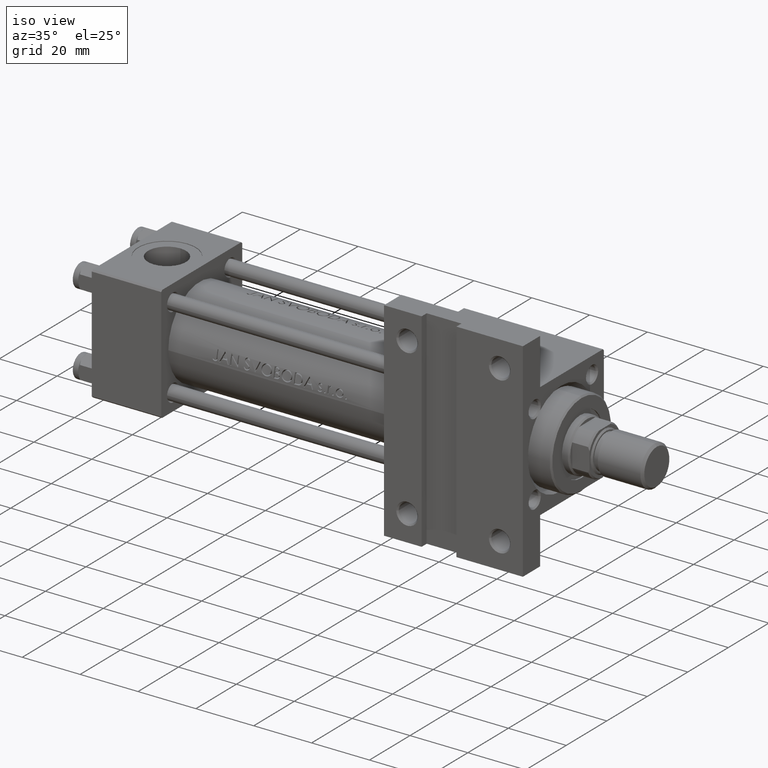
[diagram: clean part render]
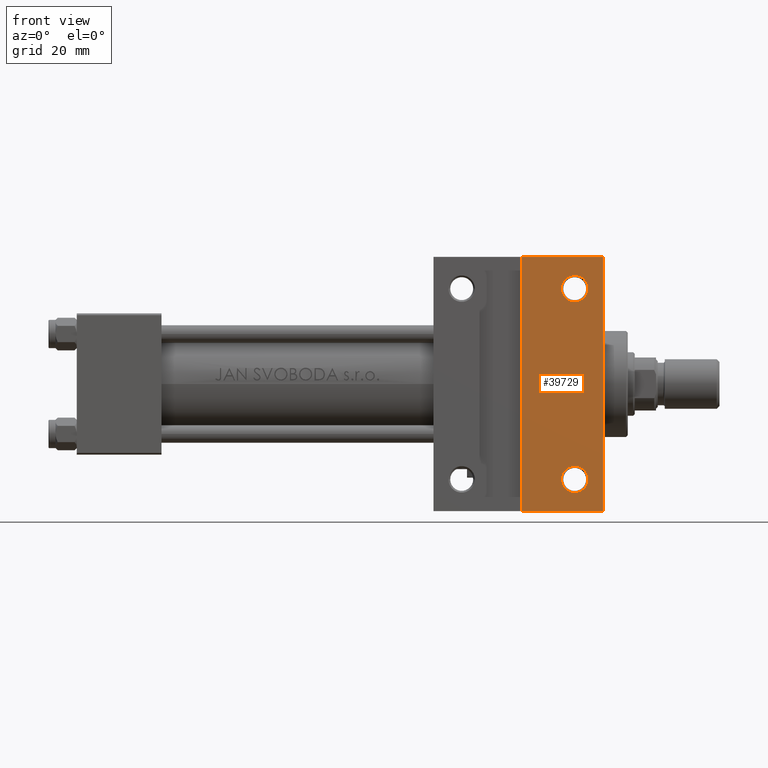
[diagram: tour spotlight — one face highlighted and labeled with its STEP entity id]
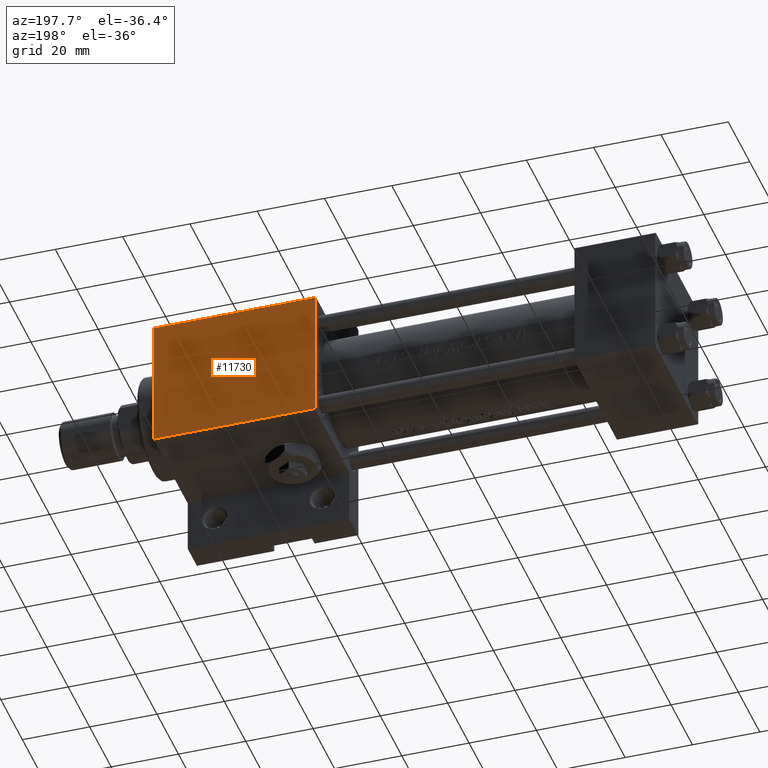
[diagram: tour spotlight — one face highlighted and labeled with its STEP entity id]
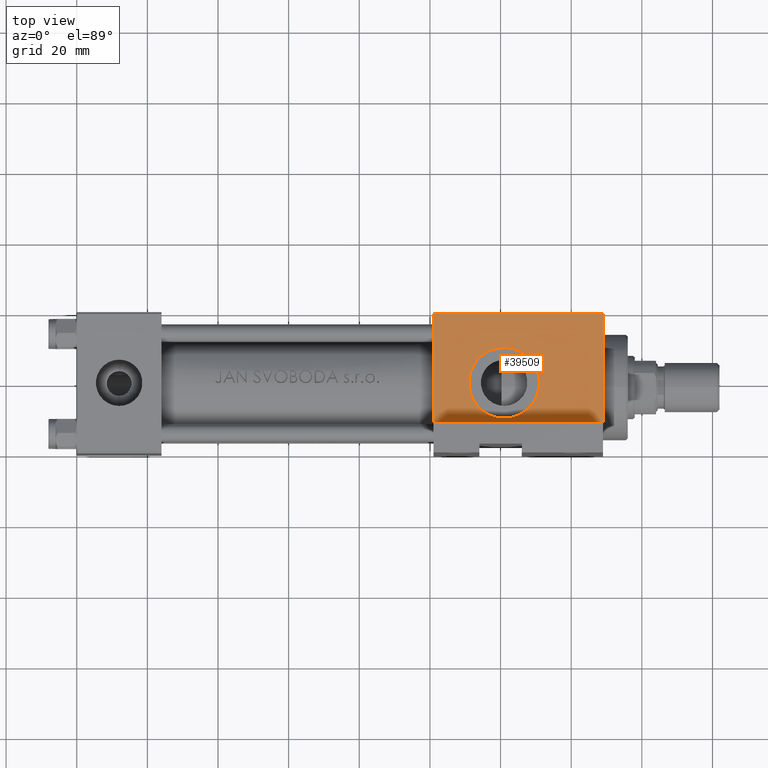
[diagram: tour spotlight — one face highlighted and labeled with its STEP entity id]
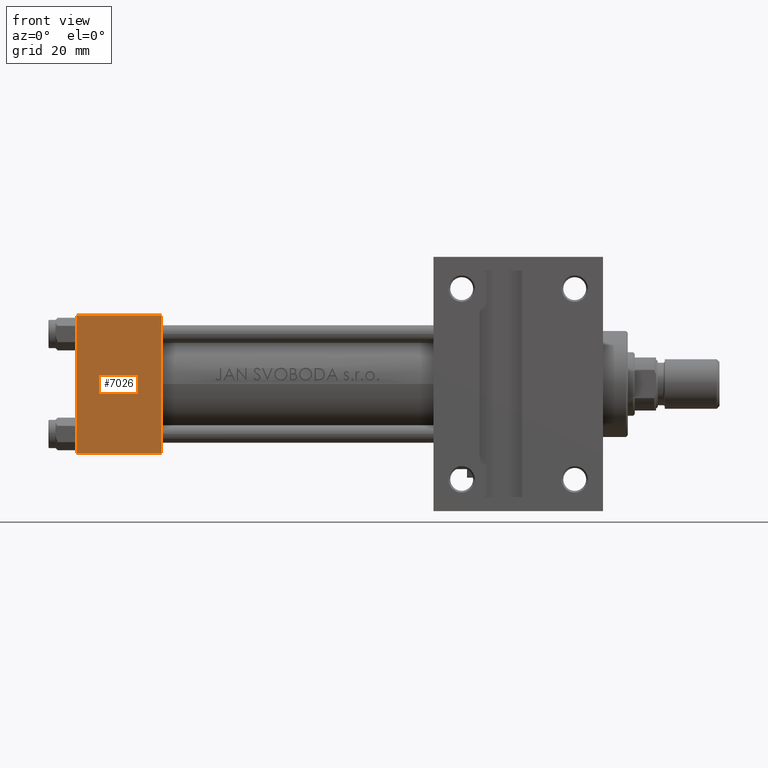
[diagram: tour spotlight — one face highlighted and labeled with its STEP entity id]
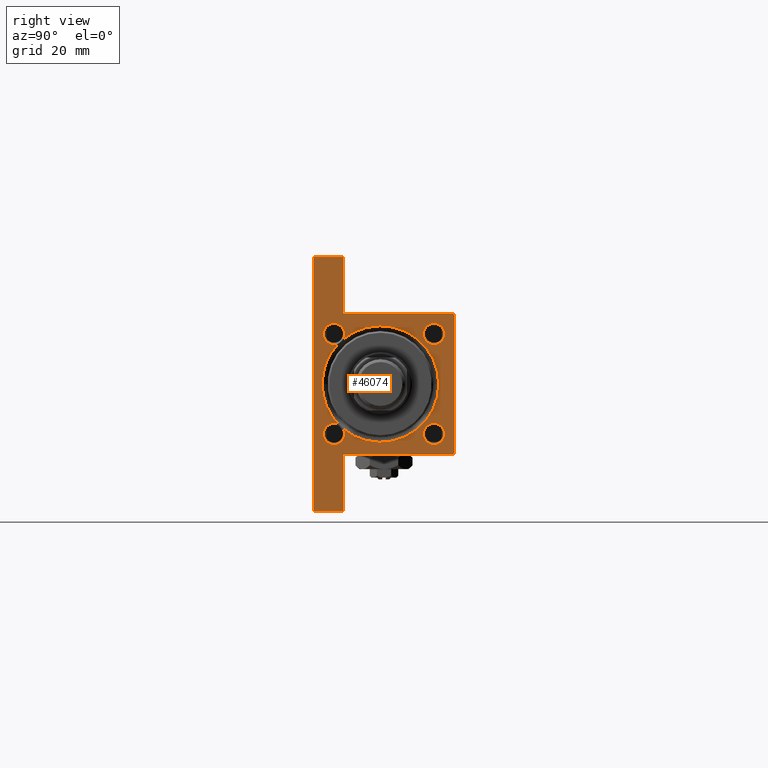
[diagram: tour spotlight — one face highlighted and labeled with its STEP entity id]
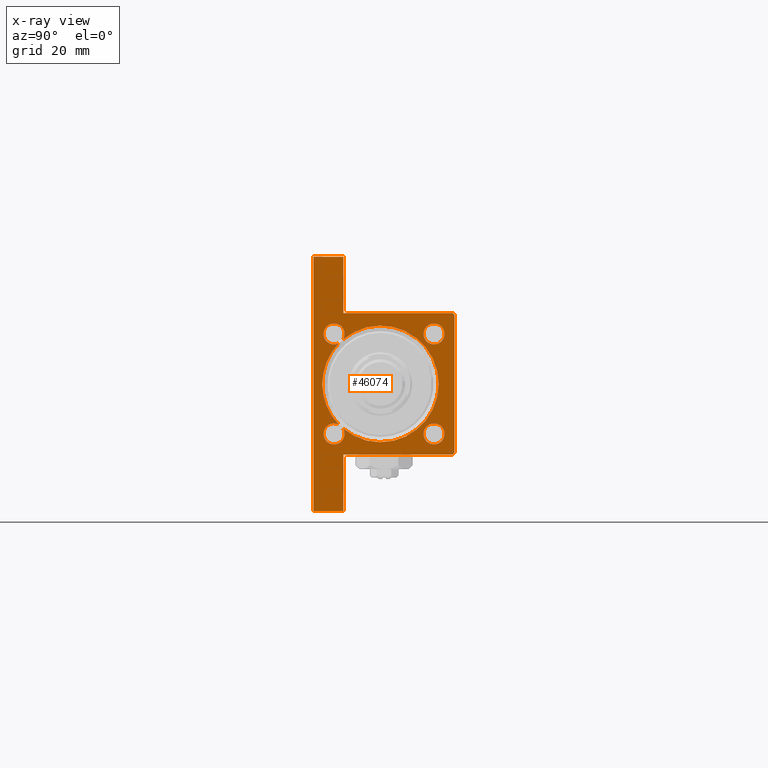
[diagram: x-ray of the same camera — body ghosted, this tour face saturated]
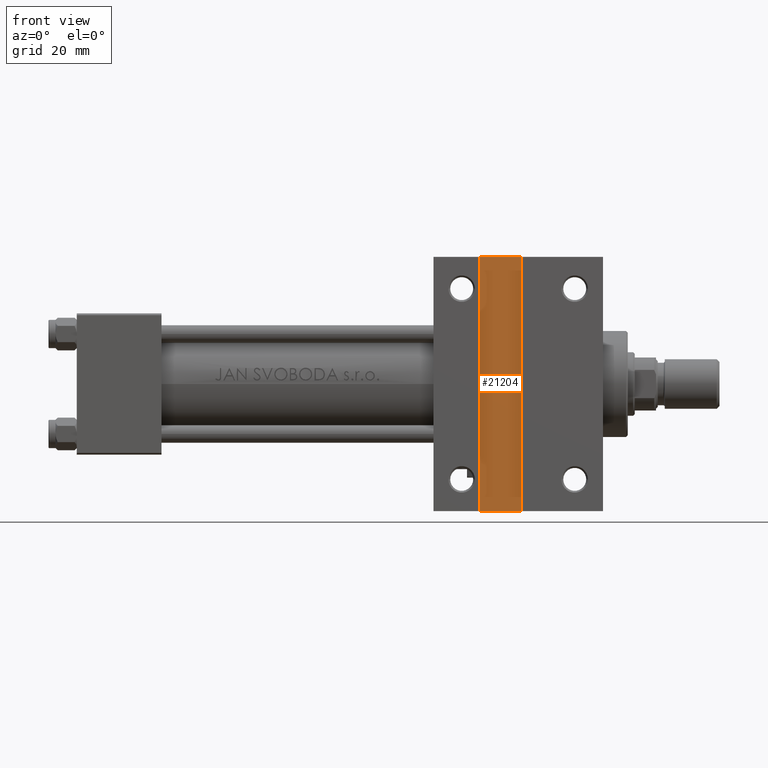
[diagram: tour spotlight — one face highlighted and labeled with its STEP entity id]
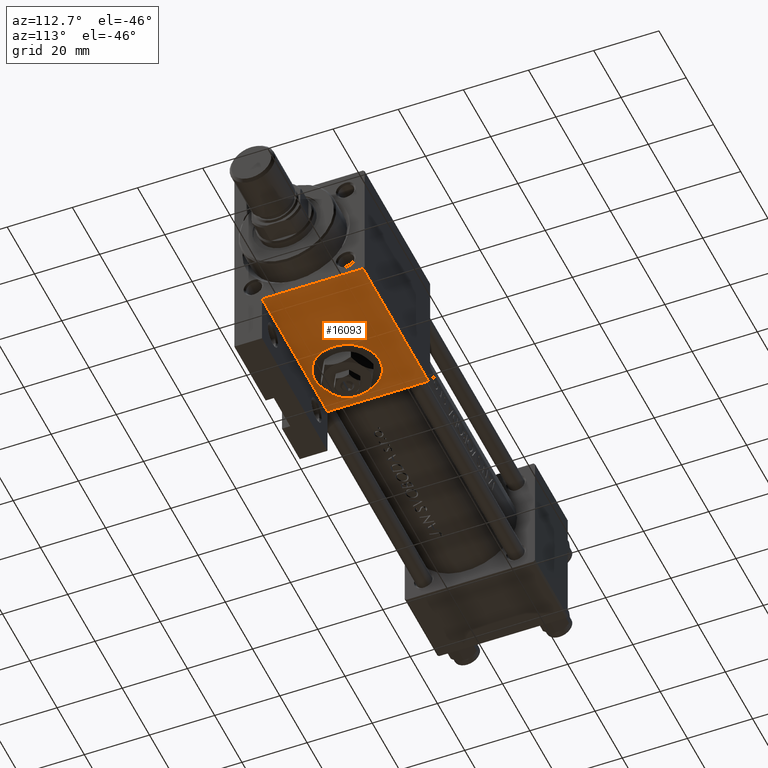
[diagram: tour spotlight — one face highlighted and labeled with its STEP entity id]
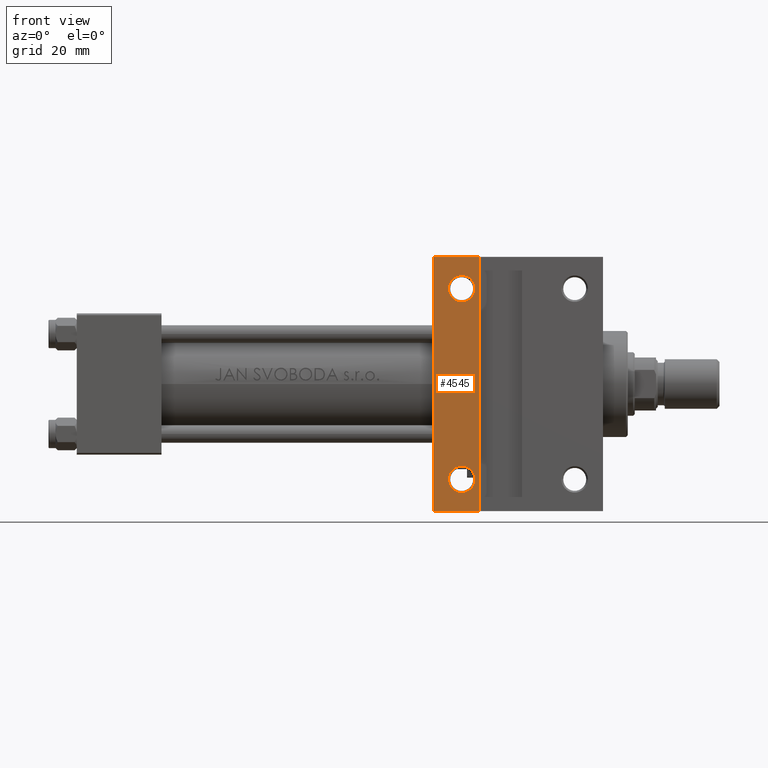
[diagram: tour spotlight — one face highlighted and labeled with its STEP entity id]
A machine part: a face-by-face anatomy tour. The part has 1161 B-rep faces; the first image is the clean iso view, then the 8 largest visible faces are spotlighted one at a time (largest first), each with its STEP entity span.

Face 1 — front view, entity #39729. In plain terms, the highlighted planar face has unit normal (0, -1, 0).
Definition (entity closure, byte-faithful):
#399 = VERTEX_POINT ( 'NONE', #49270 ) ;
#2049 = FACE_BOUND ( 'NONE', #5505, .T. ) ;
#3095 = VERTEX_POINT ( 'NONE', #12954 ) ;
#3488 = VERTEX_POINT ( 'NONE', #22175 ) ;
#3677 = ORIENTED_EDGE ( 'NONE', *, *, #7713, .T. ) ;
#4336 = LINE ( 'NONE', #19704, #32330 ) ;
#4626 = VERTEX_POINT ( 'NONE', #32678 ) ;
#5505 = EDGE_LOOP ( 'NONE', ( #40522, #35422 ) ) ;
#5537 = DIRECTION ( 'NONE',  ( -1.000000000000000000, 0.000000000000000000, 0.000000000000000000 ) ) ;
#5550 = CARTESIAN_POINT ( 'NONE',  ( 141.0000000000000000, 27.00000000000000000, -20.00000000000000000 ) ) ;
#7344 = VECTOR ( 'NONE', #27561, 1000.000000000000000 ) ;
#7381 = EDGE_CURVE ( 'NONE', #3488, #44275, #8176, .T. ) ;
#7713 = EDGE_CURVE ( 'NONE', #44275, #4626, #4336, .T. ) ;
#8176 = LINE ( 'NONE', #46913, #7344 ) ;
#8385 = ORIENTED_EDGE ( 'NONE', *, *, #18430, .F. ) ;
#8565 = DIRECTION ( 'NONE',  ( -0.000000000000000000, -0.000000000000000000, 1.000000000000000000 ) ) ;
#8890 = ORIENTED_EDGE ( 'NONE', *, *, #7381, .T. ) ;
#9123 = LINE ( 'NONE', #36773, #14481 ) ;
#10054 = DIRECTION ( 'NONE',  ( -0.000000000000000000, -0.000000000000000000, 1.000000000000000000 ) ) ;
#10292 = DIRECTION ( 'NONE',  ( -1.000000000000000000, 0.000000000000000000, 0.000000000000000000 ) ) ;
#11481 = EDGE_CURVE ( 'NONE', #3095, #45516, #38846, .T. ) ;
#11966 = AXIS2_PLACEMENT_3D ( 'NONE', #40009, #13571, #5537 ) ;
#12898 = EDGE_LOOP ( 'NONE', ( #8385, #8890, #3677, #29888 ) ) ;
#12954 = CARTESIAN_POINT ( 'NONE',  ( 137.2500499999999874, -27.00000000000000000, -20.00000000000000000 ) ) ;
#13427 = VECTOR ( 'NONE', #22067, 1000.000000000000000 ) ;
#13571 = DIRECTION ( 'NONE',  ( -0.000000000000000000, -0.000000000000000000, 1.000000000000000000 ) ) ;
#14062 = CARTESIAN_POINT ( 'NONE',  ( 141.0000000000000000, 27.00000000000000000, -20.00000000000000000 ) ) ;
#14110 = FACE_OUTER_BOUND ( 'NONE', #12898, .T. ) ;
#14204 = AXIS2_PLACEMENT_3D ( 'NONE', #22163, #21663, #49055 ) ;
#14262 = LINE ( 'NONE', #29624, #13427 ) ;
#14481 = VECTOR ( 'NONE', #36537, 1000.000000000000000 ) ;
#15353 = CARTESIAN_POINT ( 'NONE',  ( 141.0000000000000000, -27.00000000000000000, -20.00000000000000000 ) ) ;
#16464 = CARTESIAN_POINT ( 'NONE',  ( 137.2500499999999874, 27.00000000000000000, -20.00000000000000000 ) ) ;
#17477 = VERTEX_POINT ( 'NONE', #29174 ) ;
#17887 = FACE_BOUND ( 'NONE', #32587, .T. ) ;
#18430 = EDGE_CURVE ( 'NONE', #3488, #399, #9123, .T. ) ;
#19319 = AXIS2_PLACEMENT_3D ( 'NONE', #14062, #47789, #40254 ) ;
#19413 = EDGE_CURVE ( 'NONE', #38568, #17477, #33778, .T. ) ;
#19436 = EDGE_CURVE ( 'NONE', #45516, #3095, #33002, .T. ) ;
#19704 = CARTESIAN_POINT ( 'NONE',  ( 149.0000000000000284, 19.99999999999999645, -20.00000000000000000 ) ) ;
#21663 = DIRECTION ( 'NONE',  ( 0.000000000000000000, 0.000000000000000000, -1.000000000000000000 ) ) ;
#22067 = DIRECTION ( 'NONE',  ( -1.000000000000000000, 1.445602896647340149E-16, -0.000000000000000000 ) ) ;
#22163 = CARTESIAN_POINT ( 'NONE',  ( 149.0000000000000284, 19.99999999999999645, -20.00000000000000000 ) ) ;
#22175 = CARTESIAN_POINT ( 'NONE',  ( 125.9999999999999716, 35.99999999999998579, -20.00000000000000000 ) ) ;
#26357 = ORIENTED_EDGE ( 'NONE', *, *, #45147, .T. ) ;
#27561 = DIRECTION ( 'NONE',  ( 1.000000000000000000, 1.445602896647340396E-16, 0.000000000000000000 ) ) ;
#29174 = CARTESIAN_POINT ( 'NONE',  ( 144.7499500000000410, 27.00000000000000000, -20.00000000000000000 ) ) ;
#29227 = PLANE ( 'NONE',  #14204 ) ;
#29624 = CARTESIAN_POINT ( 'NONE',  ( 100.9999999999999858, -36.00000000000000000, -20.00000000000000000 ) ) ;
#29888 = ORIENTED_EDGE ( 'NONE', *, *, #40715, .T. ) ;
#30970 = DIRECTION ( 'NONE',  ( -1.000000000000000000, 0.000000000000000000, 0.000000000000000000 ) ) ;
#32026 = ORIENTED_EDGE ( 'NONE', *, *, #19413, .T. ) ;
#32330 = VECTOR ( 'NONE', #35051, 1000.000000000000000 ) ;
#32587 = EDGE_LOOP ( 'NONE', ( #32026, #26357 ) ) ;
#32678 = CARTESIAN_POINT ( 'NONE',  ( 148.9999999999999716, -36.00000000000000711, -20.00000000000000000 ) ) ;
#33002 = CIRCLE ( 'NONE', #11966, 3.749950000000029426 ) ;
#33778 = CIRCLE ( 'NONE', #19319, 3.749950000000029426 ) ;
#35051 = DIRECTION ( 'NONE',  ( 0.000000000000000000, -1.000000000000000000, 0.000000000000000000 ) ) ;
#35143 = CARTESIAN_POINT ( 'NONE',  ( 148.9999999999999716, 35.99999999999999289, -20.00000000000000000 ) ) ;
#35422 = ORIENTED_EDGE ( 'NONE', *, *, #19436, .T. ) ;
#36107 = CIRCLE ( 'NONE', #41688, 3.749950000000029426 ) ;
#36537 = DIRECTION ( 'NONE',  ( -0.000000000000000000, -1.000000000000000000, -0.000000000000000000 ) ) ;
#36773 = CARTESIAN_POINT ( 'NONE',  ( 125.9999999999999716, -35.99999999999997868, -20.00000000000000000 ) ) ;
#38568 = VERTEX_POINT ( 'NONE', #16464 ) ;
#38846 = CIRCLE ( 'NONE', #48457, 3.749950000000029426 ) ;
#38848 = CARTESIAN_POINT ( 'NONE',  ( 144.7499500000000410, -27.00000000000000000, -20.00000000000000000 ) ) ;
#39729 = ADVANCED_FACE ( 'NONE', ( #14110, #2049, #17887 ), #29227, .T. ) ;
#40009 = CARTESIAN_POINT ( 'NONE',  ( 141.0000000000000000, -27.00000000000000000, -20.00000000000000000 ) ) ;
#40254 = DIRECTION ( 'NONE',  ( -1.000000000000000000, 0.000000000000000000, 0.000000000000000000 ) ) ;
#40522 = ORIENTED_EDGE ( 'NONE', *, *, #11481, .T. ) ;
#40715 = EDGE_CURVE ( 'NONE', #4626, #399, #14262, .T. ) ;
#41688 = AXIS2_PLACEMENT_3D ( 'NONE', #5550, #10054, #10292 ) ;
#44275 = VERTEX_POINT ( 'NONE', #35143 ) ;
#45147 = EDGE_CURVE ( 'NONE', #17477, #38568, #36107, .T. ) ;
#45516 = VERTEX_POINT ( 'NONE', #38848 ) ;
#46913 = CARTESIAN_POINT ( 'NONE',  ( 101.0000000000000000, 35.99999999999998579, -20.00000000000000000 ) ) ;
#47789 = DIRECTION ( 'NONE',  ( -0.000000000000000000, -0.000000000000000000, 1.000000000000000000 ) ) ;
#48457 = AXIS2_PLACEMENT_3D ( 'NONE', #15353, #8565, #30970 ) ;
#49055 = DIRECTION ( 'NONE',  ( -1.000000000000000000, 0.000000000000000000, -0.000000000000000000 ) ) ;
#49270 = CARTESIAN_POINT ( 'NONE',  ( 125.9999999999999716, -35.99999999999997868, -20.00000000000000000 ) ) ;

Face 2 — auxiliary view, entity #11730. In plain terms, the highlighted planar face has unit normal (0, -1, -0).
Definition (entity closure, byte-faithful):
#2721 = CARTESIAN_POINT ( 'NONE',  ( 149.0000000000000284, 19.99999999999999645, 20.00000000000000000 ) ) ;
#5028 = DIRECTION ( 'NONE',  ( 0.000000000000000000, 8.673617379884034239E-17, -1.000000000000000000 ) ) ;
#6262 = LINE ( 'NONE', #2721, #15533 ) ;
#7088 = DIRECTION ( 'NONE',  ( -1.000000000000000000, 0.000000000000000000, 0.000000000000000000 ) ) ;
#9792 = CARTESIAN_POINT ( 'NONE',  ( 149.0000000000000284, 19.99999999999999645, 20.00000000000000000 ) ) ;
#11020 = CARTESIAN_POINT ( 'NONE',  ( 149.0000000000000284, -19.50000000000000355, 19.99999999999999645 ) ) ;
#11730 = ADVANCED_FACE ( 'NONE', ( #32206 ), #28932, .F. ) ;
#11771 = EDGE_CURVE ( 'NONE', #12026, #44639, #6262, .T. ) ;
#12026 = VERTEX_POINT ( 'NONE', #16550 ) ;
#14771 = EDGE_CURVE ( 'NONE', #12026, #46478, #49323, .T. ) ;
#15290 = DIRECTION ( 'NONE',  ( 1.000000000000000000, 0.000000000000000000, 0.000000000000000000 ) ) ;
#15533 = VECTOR ( 'NONE', #17833, 1000.000000000000000 ) ;
#16550 = CARTESIAN_POINT ( 'NONE',  ( 149.0000000000000284, 19.50000000000001066, 20.00000000000000000 ) ) ;
#17833 = DIRECTION ( 'NONE',  ( 0.000000000000000000, -1.000000000000000000, -8.673617379884035472E-17 ) ) ;
#17944 = ORIENTED_EDGE ( 'NONE', *, *, #23648, .T. ) ;
#23502 = CARTESIAN_POINT ( 'NONE',  ( 149.0000000000000284, -19.50000000000000355, 19.99999999999999645 ) ) ;
#23648 = EDGE_CURVE ( 'NONE', #46478, #41498, #43185, .T. ) ;
#25075 = CARTESIAN_POINT ( 'NONE',  ( 101.0000000000000000, 19.99999999999999645, 20.00000000000000000 ) ) ;
#25777 = ORIENTED_EDGE ( 'NONE', *, *, #14771, .T. ) ;
#25814 = VECTOR ( 'NONE', #39667, 1000.000000000000000 ) ;
#26142 = LINE ( 'NONE', #11020, #37481 ) ;
#28474 = ORIENTED_EDGE ( 'NONE', *, *, #11771, .F. ) ;
#28932 = PLANE ( 'NONE',  #37220 ) ;
#32206 = FACE_OUTER_BOUND ( 'NONE', #48858, .T. ) ;
#34826 = VECTOR ( 'NONE', #7088, 1000.000000000000000 ) ;
#36725 = DIRECTION ( 'NONE',  ( 0.000000000000000000, 1.000000000000000000, 8.673617379884034239E-17 ) ) ;
#37220 = AXIS2_PLACEMENT_3D ( 'NONE', #9792, #5028, #36725 ) ;
#37481 = VECTOR ( 'NONE', #15290, 1000.000000000000000 ) ;
#38474 = CARTESIAN_POINT ( 'NONE',  ( 101.0000000000000000, 19.50000000000001066, 20.00000000000000000 ) ) ;
#39331 = ORIENTED_EDGE ( 'NONE', *, *, #40234, .T. ) ;
#39667 = DIRECTION ( 'NONE',  ( 0.000000000000000000, -1.000000000000000000, -8.673617379884035472E-17 ) ) ;
#40234 = EDGE_CURVE ( 'NONE', #41498, #44639, #26142, .T. ) ;
#41199 = CARTESIAN_POINT ( 'NONE',  ( 101.0000000000000000, -19.50000000000000355, 19.99999999999999645 ) ) ;
#41498 = VERTEX_POINT ( 'NONE', #41199 ) ;
#43185 = LINE ( 'NONE', #25075, #25814 ) ;
#44639 = VERTEX_POINT ( 'NONE', #23502 ) ;
#45065 = CARTESIAN_POINT ( 'NONE',  ( 101.0000000000000000, 19.50000000000001066, 20.00000000000000000 ) ) ;
#46478 = VERTEX_POINT ( 'NONE', #38474 ) ;
#48858 = EDGE_LOOP ( 'NONE', ( #28474, #25777, #17944, #39331 ) ) ;
#49323 = LINE ( 'NONE', #45065, #34826 ) ;

Face 3 — top view, entity #39509. In plain terms, the highlighted planar face has unit normal (0, 0, -1).
Definition (entity closure, byte-faithful):
#1902 = CARTESIAN_POINT ( 'NONE',  ( 101.0000000000000000, -20.00000000000000355, -11.50000000000000000 ) ) ;
#3268 = ORIENTED_EDGE ( 'NONE', *, *, #7989, .F. ) ;
#6565 = ORIENTED_EDGE ( 'NONE', *, *, #42723, .F. ) ;
#6652 = VECTOR ( 'NONE', #29460, 1000.000000000000000 ) ;
#6871 = DIRECTION ( 'NONE',  ( -0.000000000000000000, 1.000000000000000000, 8.673617379884036705E-17 ) ) ;
#7989 = EDGE_CURVE ( 'NONE', #26760, #14758, #11566, .T. ) ;
#8481 = DIRECTION ( 'NONE',  ( 1.000000000000000000, -1.445602896647340396E-16, 0.000000000000000000 ) ) ;
#10022 = DIRECTION ( 'NONE',  ( 0.000000000000000000, 0.000000000000000000, -1.000000000000000000 ) ) ;
#10062 = DIRECTION ( 'NONE',  ( 0.000000000000000000, 8.673617379884036705E-17, -1.000000000000000000 ) ) ;
#10634 = EDGE_CURVE ( 'NONE', #26760, #46196, #15091, .T. ) ;
#10890 = CARTESIAN_POINT ( 'NONE',  ( 149.0000000000000284, -20.00000000000000355, 19.99999999999999645 ) ) ;
#11566 = LINE ( 'NONE', #26438, #41929 ) ;
#13214 = VECTOR ( 'NONE', #10062, 1000.000000000000000 ) ;
#14415 = ORIENTED_EDGE ( 'NONE', *, *, #37989, .F. ) ;
#14758 = VERTEX_POINT ( 'NONE', #44815 ) ;
#15091 = LINE ( 'NONE', #30217, #6652 ) ;
#17529 = AXIS2_PLACEMENT_3D ( 'NONE', #28917, #41215, #10022 ) ;
#19374 = CARTESIAN_POINT ( 'NONE',  ( 121.0000000000000142, -20.00000000000000355, -1.734723475976807883E-15 ) ) ;
#20142 = EDGE_LOOP ( 'NONE', ( #3268, #20223, #32931, #25385 ) ) ;
#20223 = ORIENTED_EDGE ( 'NONE', *, *, #10634, .T. ) ;
#23065 = AXIS2_PLACEMENT_3D ( 'NONE', #10890, #6871, #40605 ) ;
#23395 = DIRECTION ( 'NONE',  ( 0.000000000000000000, -1.000000000000000000, -8.673617379884036705E-17 ) ) ;
#23789 = CIRCLE ( 'NONE', #41446, 9.999999999999994671 ) ;
#24032 = VECTOR ( 'NONE', #8481, 1000.000000000000000 ) ;
#25055 = VERTEX_POINT ( 'NONE', #47326 ) ;
#25280 = FACE_OUTER_BOUND ( 'NONE', #20142, .T. ) ;
#25385 = ORIENTED_EDGE ( 'NONE', *, *, #48731, .T. ) ;
#25425 = EDGE_LOOP ( 'NONE', ( #14415, #6565 ) ) ;
#25548 = CARTESIAN_POINT ( 'NONE',  ( 101.0000000000000000, -20.00000000000000355, 19.49999999999999645 ) ) ;
#26438 = CARTESIAN_POINT ( 'NONE',  ( 149.0000000000000284, -20.00000000000000355, 19.99999999999999645 ) ) ;
#26760 = VERTEX_POINT ( 'NONE', #46715 ) ;
#26942 = DIRECTION ( 'NONE',  ( 0.000000000000000000, 8.673617379884036705E-17, -1.000000000000000000 ) ) ;
#28917 = CARTESIAN_POINT ( 'NONE',  ( 121.0000000000000142, -20.00000000000000355, -1.734723475976807883E-15 ) ) ;
#29444 = LINE ( 'NONE', #32980, #13214 ) ;
#29460 = DIRECTION ( 'NONE',  ( -1.000000000000000000, 0.000000000000000000, 0.000000000000000000 ) ) ;
#30217 = CARTESIAN_POINT ( 'NONE',  ( 149.0000000000000284, -20.00000000000000355, 19.49999999999999645 ) ) ;
#32931 = ORIENTED_EDGE ( 'NONE', *, *, #34196, .T. ) ;
#32980 = CARTESIAN_POINT ( 'NONE',  ( 101.0000000000000000, -20.00000000000000355, 19.99999999999999645 ) ) ;
#33515 = VERTEX_POINT ( 'NONE', #1902 ) ;
#34196 = EDGE_CURVE ( 'NONE', #46196, #33515, #29444, .T. ) ;
#37989 = EDGE_CURVE ( 'NONE', #25055, #44795, #23789, .T. ) ;
#38417 = LINE ( 'NONE', #47201, #24032 ) ;
#39220 = CIRCLE ( 'NONE', #17529, 9.999999999999994671 ) ;
#39509 = ADVANCED_FACE ( 'NONE', ( #41594, #25280 ), #45365, .F. ) ;
#40605 = DIRECTION ( 'NONE',  ( 0.000000000000000000, -8.673617379884036705E-17, 1.000000000000000000 ) ) ;
#41215 = DIRECTION ( 'NONE',  ( 0.000000000000000000, -1.000000000000000000, -8.673617379884036705E-17 ) ) ;
#41446 = AXIS2_PLACEMENT_3D ( 'NONE', #19374, #23395, #42252 ) ;
#41594 = FACE_BOUND ( 'NONE', #25425, .T. ) ;
#41929 = VECTOR ( 'NONE', #26942, 1000.000000000000000 ) ;
#42252 = DIRECTION ( 'NONE',  ( 0.000000000000000000, 0.000000000000000000, -1.000000000000000000 ) ) ;
#42723 = EDGE_CURVE ( 'NONE', #44795, #25055, #39220, .T. ) ;
#44795 = VERTEX_POINT ( 'NONE', #47361 ) ;
#44815 = CARTESIAN_POINT ( 'NONE',  ( 149.0000000000000284, -20.00000000000000000, -11.50000000000000355 ) ) ;
#45365 = PLANE ( 'NONE',  #23065 ) ;
#46196 = VERTEX_POINT ( 'NONE', #25548 ) ;
#46715 = CARTESIAN_POINT ( 'NONE',  ( 149.0000000000000284, -20.00000000000000355, 19.49999999999999645 ) ) ;
#47201 = CARTESIAN_POINT ( 'NONE',  ( 101.0000000000000000, -20.00000000000000355, -11.50000000000000000 ) ) ;
#47326 = CARTESIAN_POINT ( 'NONE',  ( 121.0000000000000142, -20.00000000000000355, -9.999999999999996447 ) ) ;
#47361 = CARTESIAN_POINT ( 'NONE',  ( 121.0000000000000142, -20.00000000000000355, 9.999999999999992895 ) ) ;
#48731 = EDGE_CURVE ( 'NONE', #33515, #14758, #38417, .T. ) ;

Face 4 — front view, entity #7026. In plain terms, the highlighted planar face has unit normal (0, -1, 0).
Definition (entity closure, byte-faithful):
#4595 = EDGE_CURVE ( 'NONE', #15327, #30499, #36452, .T. ) ;
#5560 = CARTESIAN_POINT ( 'NONE',  ( 24.00000000000000000, 19.50000000000000711, -20.00000000000000711 ) ) ;
#7026 = ADVANCED_FACE ( 'NONE', ( #49287 ), #8736, .T. ) ;
#8238 = DIRECTION ( 'NONE',  ( 1.000000000000000000, 0.000000000000000000, 0.000000000000000000 ) ) ;
#8267 = ORIENTED_EDGE ( 'NONE', *, *, #4595, .T. ) ;
#8505 = EDGE_CURVE ( 'NONE', #43523, #40127, #15159, .T. ) ;
#8576 = ORIENTED_EDGE ( 'NONE', *, *, #8505, .F. ) ;
#8736 = PLANE ( 'NONE',  #25860 ) ;
#9487 = CARTESIAN_POINT ( 'NONE',  ( 0.000000000000000000, 20.00000000000000000, -20.00000000000000711 ) ) ;
#10005 = DIRECTION ( 'NONE',  ( 0.000000000000000000, -1.000000000000000000, 1.734723475976807094E-16 ) ) ;
#11994 = LINE ( 'NONE', #43201, #18548 ) ;
#12411 = LINE ( 'NONE', #20224, #19217 ) ;
#15159 = LINE ( 'NONE', #9487, #25899 ) ;
#15327 = VERTEX_POINT ( 'NONE', #5560 ) ;
#15333 = DIRECTION ( 'NONE',  ( 0.000000000000000000, -1.734723475976806848E-16, -1.000000000000000000 ) ) ;
#16169 = CARTESIAN_POINT ( 'NONE',  ( 24.00000000000000000, -19.50000000000000711, -20.00000000000000000 ) ) ;
#18548 = VECTOR ( 'NONE', #8238, 1000.000000000000000 ) ;
#18882 = CARTESIAN_POINT ( 'NONE',  ( 24.00000000000000000, 20.00000000000000000, -20.00000000000000711 ) ) ;
#19217 = VECTOR ( 'NONE', #40077, 1000.000000000000000 ) ;
#20224 = CARTESIAN_POINT ( 'NONE',  ( 0.000000000000000000, -19.50000000000000711, -20.00000000000000000 ) ) ;
#22549 = EDGE_CURVE ( 'NONE', #43523, #15327, #11994, .T. ) ;
#23679 = ORIENTED_EDGE ( 'NONE', *, *, #44794, .T. ) ;
#25860 = AXIS2_PLACEMENT_3D ( 'NONE', #18882, #15333, #37738 ) ;
#25899 = VECTOR ( 'NONE', #26014, 1000.000000000000000 ) ;
#26014 = DIRECTION ( 'NONE',  ( 0.000000000000000000, -1.000000000000000000, 1.734723475976807094E-16 ) ) ;
#30499 = VERTEX_POINT ( 'NONE', #16169 ) ;
#31765 = EDGE_LOOP ( 'NONE', ( #8576, #41232, #8267, #23679 ) ) ;
#36452 = LINE ( 'NONE', #44473, #41011 ) ;
#37738 = DIRECTION ( 'NONE',  ( 0.000000000000000000, 1.000000000000000000, -1.734723475976806848E-16 ) ) ;
#38150 = CARTESIAN_POINT ( 'NONE',  ( 0.000000000000000000, 19.50000000000000711, -20.00000000000000711 ) ) ;
#40000 = CARTESIAN_POINT ( 'NONE',  ( 0.000000000000000000, -19.50000000000000711, -20.00000000000000000 ) ) ;
#40077 = DIRECTION ( 'NONE',  ( -1.000000000000000000, 0.000000000000000000, 0.000000000000000000 ) ) ;
#40127 = VERTEX_POINT ( 'NONE', #40000 ) ;
#41011 = VECTOR ( 'NONE', #10005, 1000.000000000000000 ) ;
#41232 = ORIENTED_EDGE ( 'NONE', *, *, #22549, .T. ) ;
#43201 = CARTESIAN_POINT ( 'NONE',  ( 24.00000000000000000, 19.50000000000000711, -20.00000000000000711 ) ) ;
#43523 = VERTEX_POINT ( 'NONE', #38150 ) ;
#44473 = CARTESIAN_POINT ( 'NONE',  ( 24.00000000000000000, 20.00000000000000000, -20.00000000000000711 ) ) ;
#44794 = EDGE_CURVE ( 'NONE', #30499, #40127, #12411, .T. ) ;
#49287 = FACE_OUTER_BOUND ( 'NONE', #31765, .T. ) ;

Face 5 — right view, entity #46074. An x-ray twin of the same camera follows (body ghosted, this face saturated) — the face is partly hidden behind the body. In plain terms, the highlighted planar face has unit normal (-1, 0, -0).
Definition (entity closure, byte-faithful):
#404 = CARTESIAN_POINT ( 'NONE',  ( 149.0000000000000284, 0.000000000000000000, 0.000000000000000000 ) ) ;
#525 = VERTEX_POINT ( 'NONE', #36198 ) ;
#771 = EDGE_CURVE ( 'NONE', #25422, #27762, #26211, .T. ) ;
#1049 = CARTESIAN_POINT ( 'NONE',  ( 148.9999999999999716, -36.00000000000000711, -11.50000000000000000 ) ) ;
#1149 = DIRECTION ( 'NONE',  ( -1.000000000000000000, 0.000000000000000000, -0.000000000000000000 ) ) ;
#1212 = DIRECTION ( 'NONE',  ( 0.000000000000000000, 0.000000000000000000, 1.000000000000000000 ) ) ;
#1298 = LINE ( 'NONE', #1049, #32671 ) ;
#1823 = EDGE_CURVE ( 'NONE', #525, #22658, #20068, .T. ) ;
#2120 = CARTESIAN_POINT ( 'NONE',  ( 149.0000000000000284, 11.41741110086842959, -12.91187322606171684 ) ) ;
#2473 = EDGE_CURVE ( 'NONE', #33415, #44275, #4348, .T. ) ;
#2646 = AXIS2_PLACEMENT_3D ( 'NONE', #22510, #8350, #18739 ) ;
#2721 = CARTESIAN_POINT ( 'NONE',  ( 149.0000000000000284, 19.99999999999999645, 20.00000000000000000 ) ) ;
#2774 = CARTESIAN_POINT ( 'NONE',  ( 149.0000000000000284, 14.14999999999999858, 14.15000000000000036 ) ) ;
#2948 = ORIENTED_EDGE ( 'NONE', *, *, #11771, .T. ) ;
#3004 = DIRECTION ( 'NONE',  ( -1.000000000000000000, -0.000000000000000000, -0.000000000000000000 ) ) ;
#3019 = DIRECTION ( 'NONE',  ( 0.000000000000000000, 0.000000000000000000, 1.000000000000000000 ) ) ;
#3264 = CARTESIAN_POINT ( 'NONE',  ( 149.0000000000000284, 12.71526989445509059, -11.51531794627074312 ) ) ;
#3455 = DIRECTION ( 'NONE',  ( 0.000000000000000000, 0.000000000000000000, 1.000000000000000000 ) ) ;
#3551 = CIRCLE ( 'NONE', #12400, 2.999999999999990674 ) ;
#3867 = EDGE_CURVE ( 'NONE', #10582, #8377, #24155, .T. ) ;
#4021 = DIRECTION ( 'NONE',  ( -0.000000000000000000, -0.7071067811865474617, -0.7071067811865474617 ) ) ;
#4163 = EDGE_CURVE ( 'NONE', #39088, #4626, #7092, .T. ) ;
#4336 = LINE ( 'NONE', #19704, #32330 ) ;
#4348 = LINE ( 'NONE', #31034, #42550 ) ;
#4626 = VERTEX_POINT ( 'NONE', #32678 ) ;
#4848 = AXIS2_PLACEMENT_3D ( 'NONE', #17115, #16861, #32223 ) ;
#5274 = DIRECTION ( 'NONE',  ( -1.000000000000000000, -0.000000000000000000, -0.000000000000000000 ) ) ;
#5327 = DIRECTION ( 'NONE',  ( -0.000000000000000000, -1.000000000000000000, -0.000000000000000000 ) ) ;
#5904 = CARTESIAN_POINT ( 'NONE',  ( 149.0000000000000284, 14.14999999999999858, 17.14999999999999147 ) ) ;
#5926 = DIRECTION ( 'NONE',  ( 0.000000000000000000, 0.000000000000000000, 1.000000000000000000 ) ) ;
#6262 = LINE ( 'NONE', #2721, #15533 ) ;
#6378 = VECTOR ( 'NONE', #45334, 1000.000000000000000 ) ;
#6388 = LINE ( 'NONE', #34321, #13079 ) ;
#6577 = CIRCLE ( 'NONE', #19459, 2.999999999999990674 ) ;
#6836 = CARTESIAN_POINT ( 'NONE',  ( 148.9999999999999716, -36.00000000000000711, -11.50000000000000000 ) ) ;
#6900 = AXIS2_PLACEMENT_3D ( 'NONE', #27860, #43183, #8972 ) ;
#7090 = CARTESIAN_POINT ( 'NONE',  ( 149.0000000000000284, 0.000000000000000000, -17.49999999999998934 ) ) ;
#7092 = LINE ( 'NONE', #6836, #49006 ) ;
#7713 = EDGE_CURVE ( 'NONE', #44275, #4626, #4336, .T. ) ;
#7873 = VERTEX_POINT ( 'NONE', #13610 ) ;
#7989 = EDGE_CURVE ( 'NONE', #26760, #14758, #11566, .T. ) ;
#8350 = DIRECTION ( 'NONE',  ( -1.000000000000000000, -0.000000000000000000, -0.000000000000000000 ) ) ;
#8377 = VERTEX_POINT ( 'NONE', #43210 ) ;
#8386 = DIRECTION ( 'NONE',  ( 0.000000000000000000, 0.000000000000000000, -1.000000000000000000 ) ) ;
#8716 = FACE_BOUND ( 'NONE', #37656, .T. ) ;
#8962 = VERTEX_POINT ( 'NONE', #37696 ) ;
#8972 = DIRECTION ( 'NONE',  ( 0.000000000000000000, 0.000000000000000000, 1.000000000000000000 ) ) ;
#9485 = EDGE_LOOP ( 'NONE', ( #37178, #34314 ) ) ;
#10043 = EDGE_CURVE ( 'NONE', #8962, #10582, #31565, .T. ) ;
#10581 = DIRECTION ( 'NONE',  ( -1.000000000000000000, -0.000000000000000000, -0.000000000000000000 ) ) ;
#10582 = VERTEX_POINT ( 'NONE', #3264 ) ;
#10592 = VERTEX_POINT ( 'NONE', #22395 ) ;
#11072 = CARTESIAN_POINT ( 'NONE',  ( 149.0000000000000284, 14.14999999999999858, 14.15000000000000036 ) ) ;
#11440 = CARTESIAN_POINT ( 'NONE',  ( 149.0000000000000284, -14.14999999999999680, 11.15000000000001101 ) ) ;
#11566 = LINE ( 'NONE', #26438, #41929 ) ;
#11771 = EDGE_CURVE ( 'NONE', #12026, #44639, #6262, .T. ) ;
#11987 = CARTESIAN_POINT ( 'NONE',  ( 149.0000000000000284, -12.71526989445512434, -11.51531794627070227 ) ) ;
#12026 = VERTEX_POINT ( 'NONE', #16550 ) ;
#12222 = ORIENTED_EDGE ( 'NONE', *, *, #12565, .F. ) ;
#12400 = AXIS2_PLACEMENT_3D ( 'NONE', #11072, #29716, #3019 ) ;
#12511 = ORIENTED_EDGE ( 'NONE', *, *, #20404, .T. ) ;
#12565 = EDGE_CURVE ( 'NONE', #42529, #32999, #42644, .T. ) ;
#12809 = CIRCLE ( 'NONE', #39330, 16.49999999999998579 ) ;
#13061 = DIRECTION ( 'NONE',  ( 0.000000000000000000, 0.000000000000000000, 1.000000000000000000 ) ) ;
#13079 = VECTOR ( 'NONE', #26275, 1000.000000000000114 ) ;
#13154 = DIRECTION ( 'NONE',  ( 0.000000000000000000, 0.000000000000000000, 1.000000000000000000 ) ) ;
#13404 = CARTESIAN_POINT ( 'NONE',  ( 148.9999999999999716, 35.99999999999999289, -11.50000000000000000 ) ) ;
#13610 = CARTESIAN_POINT ( 'NONE',  ( 149.0000000000000284, -14.14999999999999503, -17.15000000000002345 ) ) ;
#13712 = CARTESIAN_POINT ( 'NONE',  ( 149.0000000000000284, 0.000000000000000000, -1.000000000000000888 ) ) ;
#13804 = EDGE_CURVE ( 'NONE', #42529, #12026, #6388, .T. ) ;
#13899 = DIRECTION ( 'NONE',  ( 0.000000000000000000, 0.000000000000000000, 1.000000000000000000 ) ) ;
#14335 = CIRCLE ( 'NONE', #29625, 16.49999999999998579 ) ;
#14758 = VERTEX_POINT ( 'NONE', #44815 ) ;
#15243 = ORIENTED_EDGE ( 'NONE', *, *, #45534, .T. ) ;
#15274 = CARTESIAN_POINT ( 'NONE',  ( 149.0000000000000284, 0.000000000000000000, -1.000000000000000888 ) ) ;
#15533 = VECTOR ( 'NONE', #17833, 1000.000000000000000 ) ;
#15758 = VECTOR ( 'NONE', #4021, 1000.000000000000114 ) ;
#16012 = CARTESIAN_POINT ( 'NONE',  ( 148.9999999999999716, 35.99999999999999289, -11.50000000000000000 ) ) ;
#16028 = EDGE_LOOP ( 'NONE', ( #12222, #25534, #2948, #19911, #19463, #24734, #46470, #20164, #47084, #48468 ) ) ;
#16495 = AXIS2_PLACEMENT_3D ( 'NONE', #34125, #18266, #18521 ) ;
#16550 = CARTESIAN_POINT ( 'NONE',  ( 149.0000000000000284, 19.50000000000001066, 20.00000000000000000 ) ) ;
#16861 = DIRECTION ( 'NONE',  ( -1.000000000000000000, -0.000000000000000000, -0.000000000000000000 ) ) ;
#16933 = ORIENTED_EDGE ( 'NONE', *, *, #47548, .T. ) ;
#17097 = EDGE_CURVE ( 'NONE', #27622, #40324, #3551, .T. ) ;
#17115 = CARTESIAN_POINT ( 'NONE',  ( 149.0000000000000284, 14.14999999999999858, -14.15000000000000036 ) ) ;
#17670 = EDGE_CURVE ( 'NONE', #44639, #26760, #20384, .T. ) ;
#17833 = DIRECTION ( 'NONE',  ( 0.000000000000000000, -1.000000000000000000, -8.673617379884035472E-17 ) ) ;
#18012 = CARTESIAN_POINT ( 'NONE',  ( 149.0000000000000284, 14.14999999999999858, -17.14999999999999147 ) ) ;
#18030 = CIRCLE ( 'NONE', #18864, 2.999999999999987121 ) ;
#18266 = DIRECTION ( 'NONE',  ( -1.000000000000000000, -0.000000000000000000, -0.000000000000000000 ) ) ;
#18521 = DIRECTION ( 'NONE',  ( 0.000000000000000000, 0.000000000000000000, 1.000000000000000000 ) ) ;
#18667 = ORIENTED_EDGE ( 'NONE', *, *, #3867, .T. ) ;
#18739 = DIRECTION ( 'NONE',  ( 0.000000000000000000, 0.000000000000000000, 1.000000000000000000 ) ) ;
#18864 = AXIS2_PLACEMENT_3D ( 'NONE', #32549, #21224, #13899 ) ;
#19042 = CIRCLE ( 'NONE', #36720, 2.999999999999990674 ) ;
#19459 = AXIS2_PLACEMENT_3D ( 'NONE', #35703, #24631, #1212 ) ;
#19463 = ORIENTED_EDGE ( 'NONE', *, *, #7989, .T. ) ;
#19650 = ORIENTED_EDGE ( 'NONE', *, *, #33863, .T. ) ;
#19704 = CARTESIAN_POINT ( 'NONE',  ( 149.0000000000000284, 19.99999999999999645, -20.00000000000000000 ) ) ;
#19911 = ORIENTED_EDGE ( 'NONE', *, *, #17670, .T. ) ;
#20068 = CIRCLE ( 'NONE', #34529, 2.999999999999990674 ) ;
#20164 = ORIENTED_EDGE ( 'NONE', *, *, #7713, .F. ) ;
#20384 = LINE ( 'NONE', #42504, #15758 ) ;
#20386 = CARTESIAN_POINT ( 'NONE',  ( 149.0000000000000284, -14.14999999999999680, 14.15000000000000036 ) ) ;
#20404 = EDGE_CURVE ( 'NONE', #7873, #25422, #42526, .T. ) ;
#20857 = AXIS2_PLACEMENT_3D ( 'NONE', #23496, #27776, #35564 ) ;
#21224 = DIRECTION ( 'NONE',  ( -1.000000000000000000, -0.000000000000000000, -0.000000000000000000 ) ) ;
#22144 = CARTESIAN_POINT ( 'NONE',  ( 149.0000000000000284, 0.000000000000000000, -1.000000000000000888 ) ) ;
#22395 = CARTESIAN_POINT ( 'NONE',  ( 149.0000000000000284, -11.41741110086838340, -12.91187322606176124 ) ) ;
#22510 = CARTESIAN_POINT ( 'NONE',  ( 149.0000000000000284, 14.14999999999999858, -14.15000000000000036 ) ) ;
#22649 = CARTESIAN_POINT ( 'NONE',  ( 149.0000000000000284, -14.14999999999999503, -11.14999999999998792 ) ) ;
#22658 = VERTEX_POINT ( 'NONE', #11440 ) ;
#23496 = CARTESIAN_POINT ( 'NONE',  ( 149.0000000000000284, -14.14999999999999503, -14.15000000000000391 ) ) ;
#23502 = CARTESIAN_POINT ( 'NONE',  ( 149.0000000000000284, -19.50000000000000355, 19.99999999999999645 ) ) ;
#23997 = DIRECTION ( 'NONE',  ( -1.000000000000000000, -0.000000000000000000, -0.000000000000000000 ) ) ;
#24155 = CIRCLE ( 'NONE', #4848, 2.999999999999987121 ) ;
#24334 = CARTESIAN_POINT ( 'NONE',  ( 149.0000000000000284, 14.14999999999999858, 11.15000000000001101 ) ) ;
#24631 = DIRECTION ( 'NONE',  ( -1.000000000000000000, -0.000000000000000000, -0.000000000000000000 ) ) ;
#24734 = ORIENTED_EDGE ( 'NONE', *, *, #39041, .T. ) ;
#25208 = CARTESIAN_POINT ( 'NONE',  ( 148.9999999999999716, -36.00000000000000711, -11.50000000000000000 ) ) ;
#25422 = VERTEX_POINT ( 'NONE', #22649 ) ;
#25534 = ORIENTED_EDGE ( 'NONE', *, *, #13804, .T. ) ;
#26211 = CIRCLE ( 'NONE', #6900, 3.000000000000014655 ) ;
#26275 = DIRECTION ( 'NONE',  ( 0.000000000000000000, -0.7071067811865474617, 0.7071067811865474617 ) ) ;
#26407 = EDGE_CURVE ( 'NONE', #22658, #525, #6577, .T. ) ;
#26438 = CARTESIAN_POINT ( 'NONE',  ( 149.0000000000000284, -20.00000000000000355, 19.99999999999999645 ) ) ;
#26760 = VERTEX_POINT ( 'NONE', #46715 ) ;
#26931 = EDGE_CURVE ( 'NONE', #8377, #30141, #37181, .T. ) ;
#26942 = DIRECTION ( 'NONE',  ( 0.000000000000000000, 8.673617379884036705E-17, -1.000000000000000000 ) ) ;
#27545 = VECTOR ( 'NONE', #31593, 1000.000000000000000 ) ;
#27622 = VERTEX_POINT ( 'NONE', #24334 ) ;
#27762 = VERTEX_POINT ( 'NONE', #11987 ) ;
#27776 = DIRECTION ( 'NONE',  ( -1.000000000000000000, -0.000000000000000000, -0.000000000000000000 ) ) ;
#27853 = FACE_OUTER_BOUND ( 'NONE', #16028, .T. ) ;
#27860 = CARTESIAN_POINT ( 'NONE',  ( 149.0000000000000284, -14.14999999999999503, -14.15000000000000391 ) ) ;
#28564 = ORIENTED_EDGE ( 'NONE', *, *, #771, .T. ) ;
#28831 = DIRECTION ( 'NONE',  ( -1.000000000000000000, -0.000000000000000000, -0.000000000000000000 ) ) ;
#29163 = AXIS2_PLACEMENT_3D ( 'NONE', #15274, #39616, #3455 ) ;
#29625 = AXIS2_PLACEMENT_3D ( 'NONE', #22144, #3004, #37735 ) ;
#29716 = DIRECTION ( 'NONE',  ( -1.000000000000000000, -0.000000000000000000, -0.000000000000000000 ) ) ;
#30141 = VERTEX_POINT ( 'NONE', #18012 ) ;
#31034 = CARTESIAN_POINT ( 'NONE',  ( 148.9999999999999716, 35.99999999999999289, -11.50000000000000000 ) ) ;
#31037 = ORIENTED_EDGE ( 'NONE', *, *, #35474, .T. ) ;
#31565 = CIRCLE ( 'NONE', #29163, 16.49999999999998579 ) ;
#31593 = DIRECTION ( 'NONE',  ( 0.000000000000000000, 0.000000000000000000, -1.000000000000000000 ) ) ;
#31802 = CARTESIAN_POINT ( 'NONE',  ( 149.0000000000000284, -14.14999999999999503, -14.15000000000000391 ) ) ;
#32223 = DIRECTION ( 'NONE',  ( 0.000000000000000000, 0.000000000000000000, 1.000000000000000000 ) ) ;
#32330 = VECTOR ( 'NONE', #35051, 1000.000000000000000 ) ;
#32549 = CARTESIAN_POINT ( 'NONE',  ( 149.0000000000000284, 14.14999999999999858, -14.15000000000000036 ) ) ;
#32671 = VECTOR ( 'NONE', #5327, 1000.000000000000000 ) ;
#32678 = CARTESIAN_POINT ( 'NONE',  ( 148.9999999999999716, -36.00000000000000711, -20.00000000000000000 ) ) ;
#32999 = VERTEX_POINT ( 'NONE', #46768 ) ;
#33415 = VERTEX_POINT ( 'NONE', #16012 ) ;
#33513 = ORIENTED_EDGE ( 'NONE', *, *, #26407, .T. ) ;
#33863 = EDGE_CURVE ( 'NONE', #30141, #40327, #18030, .T. ) ;
#34125 = CARTESIAN_POINT ( 'NONE',  ( 149.0000000000000284, 0.000000000000000000, -1.000000000000000888 ) ) ;
#34314 = ORIENTED_EDGE ( 'NONE', *, *, #39764, .T. ) ;
#34321 = CARTESIAN_POINT ( 'NONE',  ( 149.0000000000000284, 19.50000000000001066, 20.00000000000000000 ) ) ;
#34529 = AXIS2_PLACEMENT_3D ( 'NONE', #20386, #5274, #13061 ) ;
#35051 = DIRECTION ( 'NONE',  ( 0.000000000000000000, -1.000000000000000000, 0.000000000000000000 ) ) ;
#35143 = CARTESIAN_POINT ( 'NONE',  ( 148.9999999999999716, 35.99999999999999289, -20.00000000000000000 ) ) ;
#35370 = CARTESIAN_POINT ( 'NONE',  ( 149.0000000000000284, 19.99999999999999645, 20.00000000000000000 ) ) ;
#35393 = FACE_BOUND ( 'NONE', #49610, .T. ) ;
#35474 = EDGE_CURVE ( 'NONE', #44939, #10592, #41374, .T. ) ;
#35564 = DIRECTION ( 'NONE',  ( 0.000000000000000000, 0.000000000000000000, 1.000000000000000000 ) ) ;
#35703 = CARTESIAN_POINT ( 'NONE',  ( 149.0000000000000284, -14.14999999999999680, 14.15000000000000036 ) ) ;
#36198 = CARTESIAN_POINT ( 'NONE',  ( 149.0000000000000284, -14.14999999999999680, 17.14999999999999147 ) ) ;
#36282 = ORIENTED_EDGE ( 'NONE', *, *, #46232, .T. ) ;
#36720 = AXIS2_PLACEMENT_3D ( 'NONE', #2774, #10581, #41284 ) ;
#37178 = ORIENTED_EDGE ( 'NONE', *, *, #17097, .T. ) ;
#37181 = CIRCLE ( 'NONE', #2646, 2.999999999999987121 ) ;
#37480 = ORIENTED_EDGE ( 'NONE', *, *, #10043, .T. ) ;
#37656 = EDGE_LOOP ( 'NONE', ( #33513, #46128 ) ) ;
#37696 = CARTESIAN_POINT ( 'NONE',  ( 149.0000000000000284, 2.020667218593131128E-15, 15.49999999999998579 ) ) ;
#37735 = DIRECTION ( 'NONE',  ( 0.000000000000000000, 0.000000000000000000, 1.000000000000000000 ) ) ;
#38909 = DIRECTION ( 'NONE',  ( -0.000000000000000000, 0.000000000000000000, 1.000000000000000000 ) ) ;
#39041 = EDGE_CURVE ( 'NONE', #14758, #39088, #1298, .T. ) ;
#39088 = VERTEX_POINT ( 'NONE', #25208 ) ;
#39330 = AXIS2_PLACEMENT_3D ( 'NONE', #13712, #28831, #5926 ) ;
#39410 = PLANE ( 'NONE',  #47353 ) ;
#39616 = DIRECTION ( 'NONE',  ( -1.000000000000000000, -0.000000000000000000, -0.000000000000000000 ) ) ;
#39764 = EDGE_CURVE ( 'NONE', #40324, #27622, #19042, .T. ) ;
#39841 = LINE ( 'NONE', #13404, #6378 ) ;
#39903 = FACE_BOUND ( 'NONE', #9485, .T. ) ;
#40324 = VERTEX_POINT ( 'NONE', #5904 ) ;
#40327 = VERTEX_POINT ( 'NONE', #2120 ) ;
#41284 = DIRECTION ( 'NONE',  ( 0.000000000000000000, 0.000000000000000000, 1.000000000000000000 ) ) ;
#41374 = CIRCLE ( 'NONE', #16495, 16.49999999999998579 ) ;
#41522 = CARTESIAN_POINT ( 'NONE',  ( 149.0000000000000284, 19.99999999999999645, 19.50000000000001421 ) ) ;
#41929 = VECTOR ( 'NONE', #26942, 1000.000000000000000 ) ;
#42504 = CARTESIAN_POINT ( 'NONE',  ( 149.0000000000000284, -20.00000000000000355, 19.49999999999999645 ) ) ;
#42526 = CIRCLE ( 'NONE', #20857, 3.000000000000014655 ) ;
#42529 = VERTEX_POINT ( 'NONE', #41522 ) ;
#42550 = VECTOR ( 'NONE', #8386, 1000.000000000000000 ) ;
#42644 = LINE ( 'NONE', #35370, #27545 ) ;
#43183 = DIRECTION ( 'NONE',  ( -1.000000000000000000, -0.000000000000000000, -0.000000000000000000 ) ) ;
#43210 = CARTESIAN_POINT ( 'NONE',  ( 149.0000000000000284, 14.14999999999999858, -11.15000000000001279 ) ) ;
#44275 = VERTEX_POINT ( 'NONE', #35143 ) ;
#44639 = VERTEX_POINT ( 'NONE', #23502 ) ;
#44815 = CARTESIAN_POINT ( 'NONE',  ( 149.0000000000000284, -20.00000000000000000, -11.50000000000000355 ) ) ;
#44909 = CIRCLE ( 'NONE', #49706, 3.000000000000014655 ) ;
#44939 = VERTEX_POINT ( 'NONE', #7090 ) ;
#45066 = ORIENTED_EDGE ( 'NONE', *, *, #26931, .T. ) ;
#45334 = DIRECTION ( 'NONE',  ( 0.000000000000000000, -1.000000000000000000, 0.000000000000000000 ) ) ;
#45534 = EDGE_CURVE ( 'NONE', #10592, #7873, #44909, .T. ) ;
#45578 = DIRECTION ( 'NONE',  ( 0.000000000000000000, 0.000000000000000000, -1.000000000000000000 ) ) ;
#45683 = EDGE_CURVE ( 'NONE', #33415, #32999, #39841, .T. ) ;
#46074 = ADVANCED_FACE ( 'NONE', ( #39903, #8716, #35393, #27853 ), #39410, .F. ) ;
#46128 = ORIENTED_EDGE ( 'NONE', *, *, #1823, .T. ) ;
#46232 = EDGE_CURVE ( 'NONE', #27762, #8962, #12809, .T. ) ;
#46470 = ORIENTED_EDGE ( 'NONE', *, *, #4163, .T. ) ;
#46715 = CARTESIAN_POINT ( 'NONE',  ( 149.0000000000000284, -20.00000000000000355, 19.49999999999999645 ) ) ;
#46768 = CARTESIAN_POINT ( 'NONE',  ( 148.9999999999999716, 19.99999999999998934, -11.50000000000000000 ) ) ;
#47084 = ORIENTED_EDGE ( 'NONE', *, *, #2473, .F. ) ;
#47353 = AXIS2_PLACEMENT_3D ( 'NONE', #404, #1149, #38909 ) ;
#47548 = EDGE_CURVE ( 'NONE', #40327, #44939, #14335, .T. ) ;
#48468 = ORIENTED_EDGE ( 'NONE', *, *, #45683, .T. ) ;
#49006 = VECTOR ( 'NONE', #45578, 1000.000000000000000 ) ;
#49610 = EDGE_LOOP ( 'NONE', ( #16933, #31037, #15243, #12511, #28564, #36282, #37480, #18667, #45066, #19650 ) ) ;
#49706 = AXIS2_PLACEMENT_3D ( 'NONE', #31802, #23997, #13154 ) ;

Face 6 — front view, entity #21204. In plain terms, the highlighted planar face has unit normal (0, -1, 0).
Definition (entity closure, byte-faithful):
#442 = DIRECTION ( 'NONE',  ( -0.000000000000000000, -1.000000000000000000, -0.000000000000000000 ) ) ;
#2621 = CARTESIAN_POINT ( 'NONE',  ( 113.9999999999999574, 35.99999999999998579, -17.50000000000000000 ) ) ;
#2771 = LINE ( 'NONE', #29715, #14133 ) ;
#3665 = VERTEX_POINT ( 'NONE', #4542 ) ;
#4542 = CARTESIAN_POINT ( 'NONE',  ( 125.9999999999999716, 35.99999999999998579, -17.50000000000000000 ) ) ;
#4690 = LINE ( 'NONE', #47203, #24377 ) ;
#5178 = EDGE_LOOP ( 'NONE', ( #5485, #33089, #22140, #14061 ) ) ;
#5485 = ORIENTED_EDGE ( 'NONE', *, *, #40417, .T. ) ;
#8810 = CARTESIAN_POINT ( 'NONE',  ( 113.9999999999999574, -35.99999999999997868, -17.50000000000000000 ) ) ;
#9576 = CARTESIAN_POINT ( 'NONE',  ( 0.000000000000000000, 0.000000000000000000, -17.50000000000000000 ) ) ;
#9914 = LINE ( 'NONE', #47658, #32725 ) ;
#11123 = CARTESIAN_POINT ( 'NONE',  ( 125.9999999999999716, -36.00000000000000711, -17.50000000000000000 ) ) ;
#11146 = VECTOR ( 'NONE', #23688, 1000.000000000000000 ) ;
#11622 = VERTEX_POINT ( 'NONE', #8810 ) ;
#13653 = AXIS2_PLACEMENT_3D ( 'NONE', #9576, #40270, #40514 ) ;
#14061 = ORIENTED_EDGE ( 'NONE', *, *, #37677, .T. ) ;
#14133 = VECTOR ( 'NONE', #33735, 1000.000000000000000 ) ;
#17127 = FACE_OUTER_BOUND ( 'NONE', #5178, .T. ) ;
#19821 = DIRECTION ( 'NONE',  ( 0.000000000000000000, 1.000000000000000000, 0.000000000000000000 ) ) ;
#21204 = ADVANCED_FACE ( 'NONE', ( #17127 ), #32488, .T. ) ;
#22140 = ORIENTED_EDGE ( 'NONE', *, *, #27624, .T. ) ;
#23688 = DIRECTION ( 'NONE',  ( -1.000000000000000000, -0.000000000000000000, -0.000000000000000000 ) ) ;
#23932 = CARTESIAN_POINT ( 'NONE',  ( 113.9999999999999574, -35.99999999999997868, -17.50000000000000000 ) ) ;
#24377 = VECTOR ( 'NONE', #19821, 1000.000000000000000 ) ;
#27624 = EDGE_CURVE ( 'NONE', #11622, #45356, #4690, .T. ) ;
#28459 = LINE ( 'NONE', #23932, #11146 ) ;
#29715 = CARTESIAN_POINT ( 'NONE',  ( 113.9999999999999574, 35.99999999999998579, -17.50000000000000000 ) ) ;
#32488 = PLANE ( 'NONE',  #13653 ) ;
#32725 = VECTOR ( 'NONE', #442, 1000.000000000000000 ) ;
#33089 = ORIENTED_EDGE ( 'NONE', *, *, #44998, .T. ) ;
#33735 = DIRECTION ( 'NONE',  ( 1.000000000000000000, 0.000000000000000000, 0.000000000000000000 ) ) ;
#37677 = EDGE_CURVE ( 'NONE', #45356, #3665, #2771, .T. ) ;
#40270 = DIRECTION ( 'NONE',  ( 0.000000000000000000, 0.000000000000000000, -1.000000000000000000 ) ) ;
#40417 = EDGE_CURVE ( 'NONE', #3665, #42957, #9914, .T. ) ;
#40514 = DIRECTION ( 'NONE',  ( -1.000000000000000000, 0.000000000000000000, -0.000000000000000000 ) ) ;
#42957 = VERTEX_POINT ( 'NONE', #11123 ) ;
#44998 = EDGE_CURVE ( 'NONE', #42957, #11622, #28459, .T. ) ;
#45356 = VERTEX_POINT ( 'NONE', #2621 ) ;
#47203 = CARTESIAN_POINT ( 'NONE',  ( 113.9999999999999574, -35.99999999999997868, -17.50000000000000000 ) ) ;
#47658 = CARTESIAN_POINT ( 'NONE',  ( 125.9999999999999716, -35.99999999999997868, -17.50000000000000000 ) ) ;

Face 7 — auxiliary view, entity #16093. In plain terms, the highlighted planar face has unit normal (0, 0, -1).
Definition (entity closure, byte-faithful):
#1123 = AXIS2_PLACEMENT_3D ( 'NONE', #2034, #32745, #13603 ) ;
#1233 = LINE ( 'NONE', #31944, #22060 ) ;
#2034 = CARTESIAN_POINT ( 'NONE',  ( 149.0000000000000284, 19.99999999999999645, 20.00000000000000000 ) ) ;
#2529 = CARTESIAN_POINT ( 'NONE',  ( 114.0000000000000000, 19.99999999999999645, 0.000000000000000000 ) ) ;
#2682 = AXIS2_PLACEMENT_3D ( 'NONE', #17028, #40174, #42953 ) ;
#6566 = DIRECTION ( 'NONE',  ( 0.000000000000000000, 1.000000000000000000, 0.000000000000000000 ) ) ;
#7696 = CARTESIAN_POINT ( 'NONE',  ( 101.0000000000000000, 19.99999999999999645, 19.50000000000001421 ) ) ;
#8698 = EDGE_CURVE ( 'NONE', #39304, #37501, #27479, .T. ) ;
#8996 = ORIENTED_EDGE ( 'NONE', *, *, #25786, .T. ) ;
#9537 = DIRECTION ( 'NONE',  ( 0.000000000000000000, 0.000000000000000000, -1.000000000000000000 ) ) ;
#10583 = DIRECTION ( 'NONE',  ( 0.000000000000000000, 0.000000000000000000, 1.000000000000000000 ) ) ;
#11641 = ORIENTED_EDGE ( 'NONE', *, *, #12565, .T. ) ;
#12565 = EDGE_CURVE ( 'NONE', #42529, #32999, #42644, .T. ) ;
#12632 = VERTEX_POINT ( 'NONE', #7696 ) ;
#13199 = ORIENTED_EDGE ( 'NONE', *, *, #28607, .F. ) ;
#13603 = DIRECTION ( 'NONE',  ( 0.000000000000000000, -0.000000000000000000, 1.000000000000000000 ) ) ;
#13974 = VECTOR ( 'NONE', #17930, 1000.000000000000000 ) ;
#14389 = CARTESIAN_POINT ( 'NONE',  ( 101.0000000000000000, 19.99999999999999645, -11.50000000000000000 ) ) ;
#15966 = EDGE_CURVE ( 'NONE', #32999, #39719, #40819, .T. ) ;
#16093 = ADVANCED_FACE ( 'NONE', ( #40285, #28232 ), #21173, .T. ) ;
#16321 = EDGE_CURVE ( 'NONE', #12632, #39719, #1233, .T. ) ;
#16774 = ORIENTED_EDGE ( 'NONE', *, *, #15966, .T. ) ;
#17028 = CARTESIAN_POINT ( 'NONE',  ( 114.0000000000000000, 19.99999999999999645, 0.000000000000000000 ) ) ;
#17930 = DIRECTION ( 'NONE',  ( -1.000000000000000000, 1.445602896647340396E-16, -0.000000000000000000 ) ) ;
#21173 = PLANE ( 'NONE',  #1123 ) ;
#21425 = CARTESIAN_POINT ( 'NONE',  ( 101.0000000000000000, 19.99999999999999645, -11.50000000000000000 ) ) ;
#22060 = VECTOR ( 'NONE', #9537, 1000.000000000000000 ) ;
#24413 = CIRCLE ( 'NONE', #2682, 9.999999999999994671 ) ;
#25002 = EDGE_LOOP ( 'NONE', ( #30434, #8996, #11641, #16774 ) ) ;
#25786 = EDGE_CURVE ( 'NONE', #12632, #42529, #28556, .T. ) ;
#27479 = CIRCLE ( 'NONE', #33897, 9.999999999999994671 ) ;
#27545 = VECTOR ( 'NONE', #31593, 1000.000000000000000 ) ;
#28232 = FACE_OUTER_BOUND ( 'NONE', #25002, .T. ) ;
#28556 = LINE ( 'NONE', #48137, #46778 ) ;
#28607 = EDGE_CURVE ( 'NONE', #37501, #39304, #24413, .T. ) ;
#30434 = ORIENTED_EDGE ( 'NONE', *, *, #16321, .F. ) ;
#31593 = DIRECTION ( 'NONE',  ( 0.000000000000000000, 0.000000000000000000, -1.000000000000000000 ) ) ;
#31944 = CARTESIAN_POINT ( 'NONE',  ( 101.0000000000000000, 19.99999999999999645, 20.00000000000000000 ) ) ;
#32745 = DIRECTION ( 'NONE',  ( -0.000000000000000000, 1.000000000000000000, 0.000000000000000000 ) ) ;
#32999 = VERTEX_POINT ( 'NONE', #46768 ) ;
#33897 = AXIS2_PLACEMENT_3D ( 'NONE', #2529, #6566, #10583 ) ;
#35370 = CARTESIAN_POINT ( 'NONE',  ( 149.0000000000000284, 19.99999999999999645, 20.00000000000000000 ) ) ;
#36597 = DIRECTION ( 'NONE',  ( 1.000000000000000000, 0.000000000000000000, 0.000000000000000000 ) ) ;
#37501 = VERTEX_POINT ( 'NONE', #37583 ) ;
#37583 = CARTESIAN_POINT ( 'NONE',  ( 114.0000000000000000, 19.99999999999999645, 9.999999999999994671 ) ) ;
#39304 = VERTEX_POINT ( 'NONE', #45424 ) ;
#39719 = VERTEX_POINT ( 'NONE', #21425 ) ;
#40174 = DIRECTION ( 'NONE',  ( 0.000000000000000000, 1.000000000000000000, 0.000000000000000000 ) ) ;
#40285 = FACE_BOUND ( 'NONE', #40848, .T. ) ;
#40819 = LINE ( 'NONE', #14389, #13974 ) ;
#40848 = EDGE_LOOP ( 'NONE', ( #13199, #47113 ) ) ;
#41522 = CARTESIAN_POINT ( 'NONE',  ( 149.0000000000000284, 19.99999999999999645, 19.50000000000001421 ) ) ;
#42529 = VERTEX_POINT ( 'NONE', #41522 ) ;
#42644 = LINE ( 'NONE', #35370, #27545 ) ;
#42953 = DIRECTION ( 'NONE',  ( 0.000000000000000000, 0.000000000000000000, 1.000000000000000000 ) ) ;
#45424 = CARTESIAN_POINT ( 'NONE',  ( 114.0000000000000000, 19.99999999999999645, -9.999999999999994671 ) ) ;
#46768 = CARTESIAN_POINT ( 'NONE',  ( 148.9999999999999716, 19.99999999999998934, -11.50000000000000000 ) ) ;
#46778 = VECTOR ( 'NONE', #36597, 1000.000000000000000 ) ;
#47113 = ORIENTED_EDGE ( 'NONE', *, *, #8698, .F. ) ;
#48137 = CARTESIAN_POINT ( 'NONE',  ( 149.0000000000000284, 19.99999999999999645, 19.50000000000001421 ) ) ;

Face 8 — front view, entity #4545. In plain terms, the highlighted planar face has unit normal (0, -1, 0).
Definition (entity closure, byte-faithful):
#531 = ORIENTED_EDGE ( 'NONE', *, *, #30060, .F. ) ;
#1031 = EDGE_CURVE ( 'NONE', #12410, #6873, #2204, .T. ) ;
#1464 = DIRECTION ( 'NONE',  ( 0.000000000000000000, 0.000000000000000000, -1.000000000000000000 ) ) ;
#2204 = CIRCLE ( 'NONE', #24699, 3.749949999999960149 ) ;
#3142 = DIRECTION ( 'NONE',  ( 0.000000000000000000, 1.000000000000000000, 0.000000000000000000 ) ) ;
#4183 = AXIS2_PLACEMENT_3D ( 'NONE', #22197, #37535, #33775 ) ;
#4228 = CARTESIAN_POINT ( 'NONE',  ( 112.7499499999999699, -27.00000000000000000, -20.00000000000000000 ) ) ;
#4545 = ADVANCED_FACE ( 'NONE', ( #6234, #47750, #13780 ), #13287, .T. ) ;
#5166 = LINE ( 'NONE', #17234, #28086 ) ;
#5175 = EDGE_CURVE ( 'NONE', #10882, #46014, #41141, .T. ) ;
#5945 = VECTOR ( 'NONE', #24958, 1000.000000000000000 ) ;
#6234 = FACE_OUTER_BOUND ( 'NONE', #24986, .T. ) ;
#6380 = ORIENTED_EDGE ( 'NONE', *, *, #20047, .T. ) ;
#6873 = VERTEX_POINT ( 'NONE', #36518 ) ;
#8995 = CARTESIAN_POINT ( 'NONE',  ( 113.9999999999999574, -35.99999999999997868, -20.00000000000000000 ) ) ;
#9253 = CARTESIAN_POINT ( 'NONE',  ( 112.7499499999999699, 27.00000000000000000, -20.00000000000000000 ) ) ;
#9592 = CARTESIAN_POINT ( 'NONE',  ( 101.0000000000000000, 35.99999999999998579, -20.00000000000000000 ) ) ;
#9886 = CARTESIAN_POINT ( 'NONE',  ( 109.0000000000000142, 27.00000000000000000, -20.00000000000000000 ) ) ;
#10124 = EDGE_CURVE ( 'NONE', #46014, #10882, #14692, .T. ) ;
#10882 = VERTEX_POINT ( 'NONE', #21844 ) ;
#12410 = VERTEX_POINT ( 'NONE', #9253 ) ;
#13172 = DIRECTION ( 'NONE',  ( -0.000000000000000000, -0.000000000000000000, 1.000000000000000000 ) ) ;
#13287 = PLANE ( 'NONE',  #28183 ) ;
#13700 = DIRECTION ( 'NONE',  ( -1.000000000000000000, 1.445602896647340149E-16, -0.000000000000000000 ) ) ;
#13780 = FACE_BOUND ( 'NONE', #27866, .T. ) ;
#14692 = CIRCLE ( 'NONE', #46026, 3.749949999999960149 ) ;
#14914 = VERTEX_POINT ( 'NONE', #34514 ) ;
#15355 = ORIENTED_EDGE ( 'NONE', *, *, #10124, .T. ) ;
#15815 = EDGE_CURVE ( 'NONE', #47117, #14914, #43130, .T. ) ;
#16079 = EDGE_CURVE ( 'NONE', #47117, #39225, #24459, .T. ) ;
#16207 = DIRECTION ( 'NONE',  ( 0.000000000000000000, -1.000000000000000000, 0.000000000000000000 ) ) ;
#16663 = VERTEX_POINT ( 'NONE', #8995 ) ;
#17072 = DIRECTION ( 'NONE',  ( -1.000000000000000000, 0.000000000000000000, -0.000000000000000000 ) ) ;
#17234 = CARTESIAN_POINT ( 'NONE',  ( 100.9999999999999858, -36.00000000000000000, -20.00000000000000000 ) ) ;
#18362 = EDGE_LOOP ( 'NONE', ( #40507, #46332 ) ) ;
#20047 = EDGE_CURVE ( 'NONE', #16663, #14914, #5166, .T. ) ;
#21844 = CARTESIAN_POINT ( 'NONE',  ( 105.2500500000000585, -27.00000000000000000, -20.00000000000000000 ) ) ;
#22197 = CARTESIAN_POINT ( 'NONE',  ( 109.0000000000000142, -27.00000000000000000, -20.00000000000000000 ) ) ;
#23009 = DIRECTION ( 'NONE',  ( -1.000000000000000000, 0.000000000000000000, 0.000000000000000000 ) ) ;
#24459 = LINE ( 'NONE', #9592, #5945 ) ;
#24633 = CARTESIAN_POINT ( 'NONE',  ( 149.0000000000000284, 19.99999999999999645, -20.00000000000000000 ) ) ;
#24699 = AXIS2_PLACEMENT_3D ( 'NONE', #30318, #30069, #23009 ) ;
#24958 = DIRECTION ( 'NONE',  ( 1.000000000000000000, 1.445602896647340396E-16, 0.000000000000000000 ) ) ;
#24986 = EDGE_LOOP ( 'NONE', ( #531, #6380, #31490, #46872 ) ) ;
#27866 = EDGE_LOOP ( 'NONE', ( #28020, #15355 ) ) ;
#28020 = ORIENTED_EDGE ( 'NONE', *, *, #5175, .T. ) ;
#28086 = VECTOR ( 'NONE', #13700, 1000.000000000000000 ) ;
#28183 = AXIS2_PLACEMENT_3D ( 'NONE', #24633, #1464, #17072 ) ;
#28369 = CARTESIAN_POINT ( 'NONE',  ( 113.9999999999999574, 35.99999999999998579, -20.00000000000000000 ) ) ;
#28748 = AXIS2_PLACEMENT_3D ( 'NONE', #9886, #40094, #36577 ) ;
#29553 = CIRCLE ( 'NONE', #28748, 3.749949999999960149 ) ;
#30060 = EDGE_CURVE ( 'NONE', #16663, #39225, #30346, .T. ) ;
#30069 = DIRECTION ( 'NONE',  ( -0.000000000000000000, -0.000000000000000000, 1.000000000000000000 ) ) ;
#30318 = CARTESIAN_POINT ( 'NONE',  ( 109.0000000000000142, 27.00000000000000000, -20.00000000000000000 ) ) ;
#30346 = LINE ( 'NONE', #37629, #33305 ) ;
#31490 = ORIENTED_EDGE ( 'NONE', *, *, #15815, .F. ) ;
#32556 = CARTESIAN_POINT ( 'NONE',  ( 101.0000000000000000, 35.99999999999998579, -20.00000000000000000 ) ) ;
#33305 = VECTOR ( 'NONE', #3142, 1000.000000000000000 ) ;
#33775 = DIRECTION ( 'NONE',  ( -1.000000000000000000, 0.000000000000000000, 0.000000000000000000 ) ) ;
#34514 = CARTESIAN_POINT ( 'NONE',  ( 100.9999999999999858, -36.00000000000000000, -20.00000000000000000 ) ) ;
#36484 = VECTOR ( 'NONE', #16207, 1000.000000000000000 ) ;
#36518 = CARTESIAN_POINT ( 'NONE',  ( 105.2500500000000585, 27.00000000000000000, -20.00000000000000000 ) ) ;
#36577 = DIRECTION ( 'NONE',  ( -1.000000000000000000, 0.000000000000000000, 0.000000000000000000 ) ) ;
#37535 = DIRECTION ( 'NONE',  ( -0.000000000000000000, -0.000000000000000000, 1.000000000000000000 ) ) ;
#37629 = CARTESIAN_POINT ( 'NONE',  ( 113.9999999999999574, -35.99999999999997868, -20.00000000000000000 ) ) ;
#39225 = VERTEX_POINT ( 'NONE', #28369 ) ;
#40094 = DIRECTION ( 'NONE',  ( -0.000000000000000000, -0.000000000000000000, 1.000000000000000000 ) ) ;
#40102 = CARTESIAN_POINT ( 'NONE',  ( 109.0000000000000142, -27.00000000000000000, -20.00000000000000000 ) ) ;
#40351 = DIRECTION ( 'NONE',  ( -1.000000000000000000, 0.000000000000000000, 0.000000000000000000 ) ) ;
#40507 = ORIENTED_EDGE ( 'NONE', *, *, #42072, .T. ) ;
#41141 = CIRCLE ( 'NONE', #4183, 3.749949999999960149 ) ;
#42072 = EDGE_CURVE ( 'NONE', #6873, #12410, #29553, .T. ) ;
#43130 = LINE ( 'NONE', #47146, #36484 ) ;
#46014 = VERTEX_POINT ( 'NONE', #4228 ) ;
#46026 = AXIS2_PLACEMENT_3D ( 'NONE', #40102, #13172, #40351 ) ;
#46332 = ORIENTED_EDGE ( 'NONE', *, *, #1031, .T. ) ;
#46872 = ORIENTED_EDGE ( 'NONE', *, *, #16079, .T. ) ;
#47117 = VERTEX_POINT ( 'NONE', #32556 ) ;
#47146 = CARTESIAN_POINT ( 'NONE',  ( 101.0000000000000000, 19.99999999999999645, -20.00000000000000000 ) ) ;
#47750 = FACE_BOUND ( 'NONE', #18362, .T. ) ;